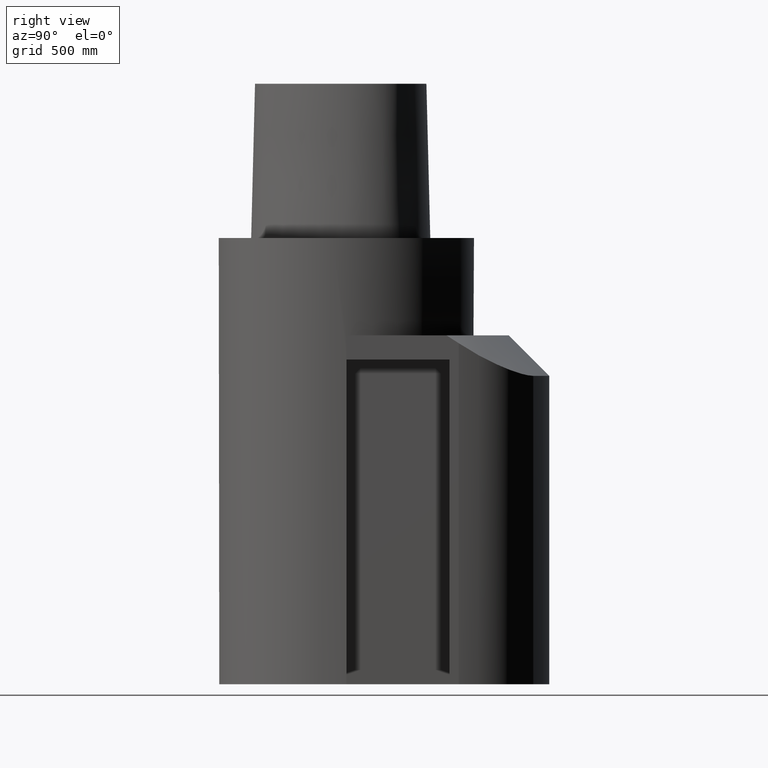
[diagram: clean part render]
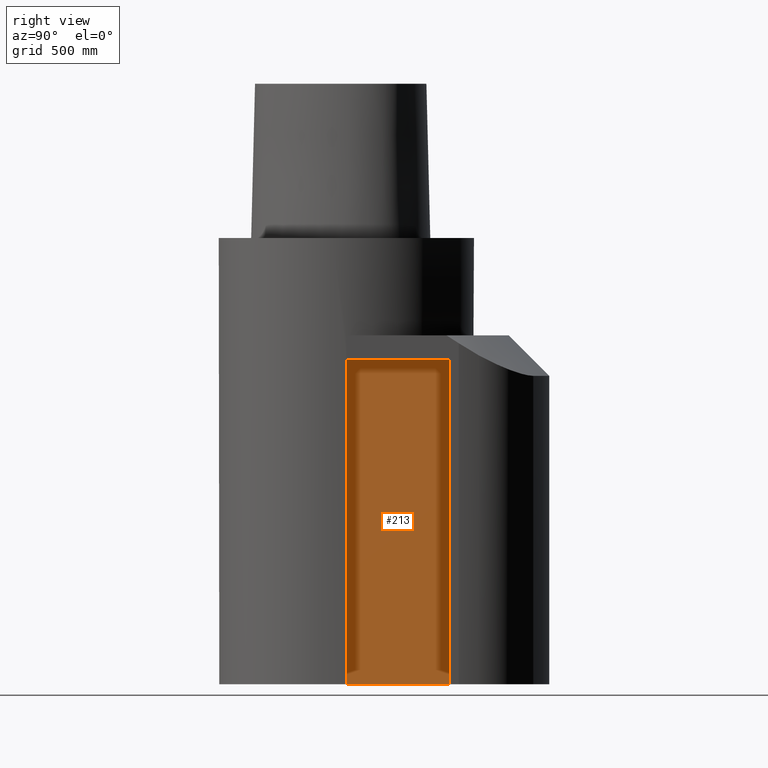
[diagram: same view with one face highlighted and labeled with its STEP entity id]
A machine part, right view. The second image highlights one B-rep face of the part: STEP entity #213.
In plain terms, the highlighted planar face has unit normal (-1, 0, -0).
Its self-contained STEP definition (entity closure, byte-faithful):
#96=EDGE_CURVE('Unnamed[1]',#264,#265,#266,.T.);
#138=EDGE_CURVE('Unnamed[1]',#329,#330,#331,.T.);
#155=EDGE_CURVE('Unnamed[1]',#330,#265,#353,.T.);
#162=EDGE_CURVE('Unnamed[1]',#264,#329,#361,.T.);
#213=ADVANCED_FACE('Unnamed[1]',(#423),#424,.F.);
#264=VERTEX_POINT('',#554);
#265=VERTEX_POINT('',#555);
#266=LINE('',#556,#557);
#329=VERTEX_POINT('',#760);
#330=VERTEX_POINT('',#761);
#331=LINE('',#762,#763);
#353=LINE('',#793,#794);
#361=LINE('',#820,#821);
#423=FACE_OUTER_BOUND('',#948,.T.);
#424=PLANE('',#949);
#554=CARTESIAN_POINT('',(6.10000000000848,25.4,-110.00000000003));
#555=CARTESIAN_POINT('',(6.10000000000847,25.4,-29.9999999999993));
#556=CARTESIAN_POINT('',(6.10000000000849,25.4,-224.0));
#557=VECTOR('',#1018,1.0);
#760=CARTESIAN_POINT('',(6.10000000000847,2.05656002138704E-014,-110.00000000003));
#761=CARTESIAN_POINT('',(6.10000000000846,2.54641874104616E-014,-29.9999999999993));
#762=CARTESIAN_POINT('',(6.10000000000849,1.35851134587323E-014,-224.0));
#763=VECTOR('',#1076,1.0);
#793=CARTESIAN_POINT('',(6.10000000000846,2.54641874104616E-014,-29.9999999999993));
#794=VECTOR('',#1110,1.0);
#820=CARTESIAN_POINT('',(6.10000000000847,6.35,-110.00000000003));
#821=VECTOR('',#1117,1.0);
#948=EDGE_LOOP('',(#1190,#1191,#1192,#1193));
#949=AXIS2_PLACEMENT_3D('',#1194,#1195,#1196);
#1018=DIRECTION('',(-1.22464679914735E-016,6.12323399573677E-017,1.0));
#1076=DIRECTION('',(-1.22464679914735E-016,6.12323399573677E-017,1.0));
#1110=DIRECTION('',(2.88599982828811E-016,1.0,1.05773259824752E-015));
#1117=DIRECTION('',(-2.88599982828811E-016,-1.0,6.12323399572098E-017));
#1190=ORIENTED_EDGE('',*,*,#162,.F.);
#1191=ORIENTED_EDGE('',*,*,#96,.T.);
#1192=ORIENTED_EDGE('',*,*,#155,.F.);
#1193=ORIENTED_EDGE('',*,*,#138,.F.);
#1194=CARTESIAN_POINT('',(6.10000000000849,12.7,-224.0));
#1195=DIRECTION('',(-1.0,2.88599982828811E-016,-1.22464679914735E-016));
#1196=DIRECTION('',(-2.88599982828811E-016,-1.0,-1.05773259824752E-015));